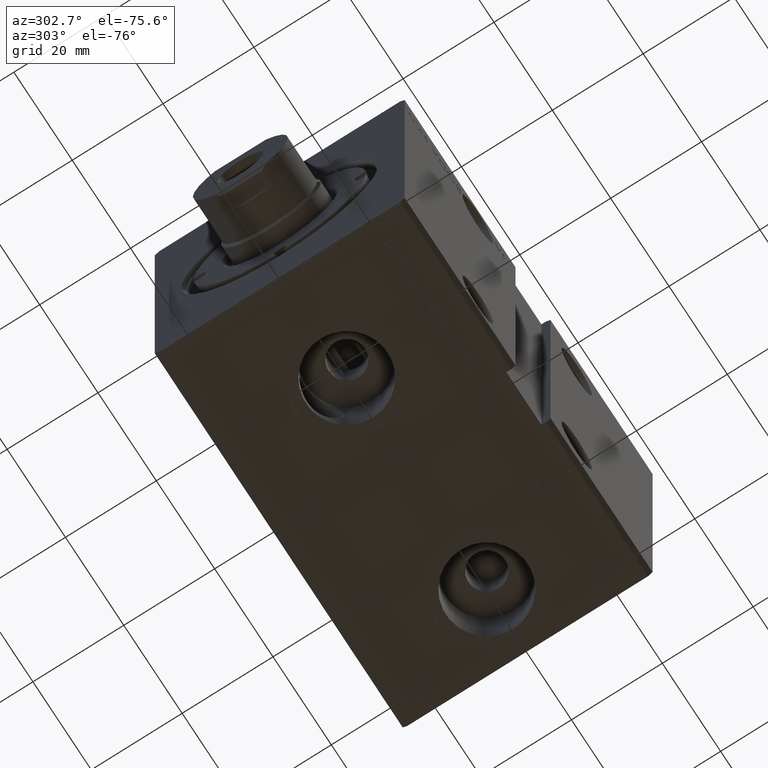
[diagram: clean part render]
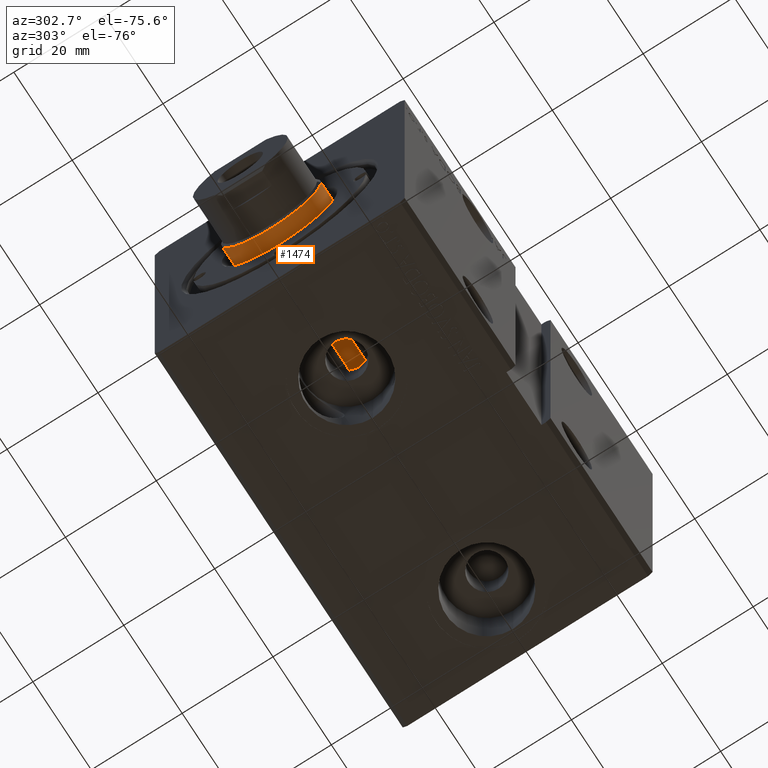
[diagram: same view with one face highlighted and labeled with its STEP entity id]
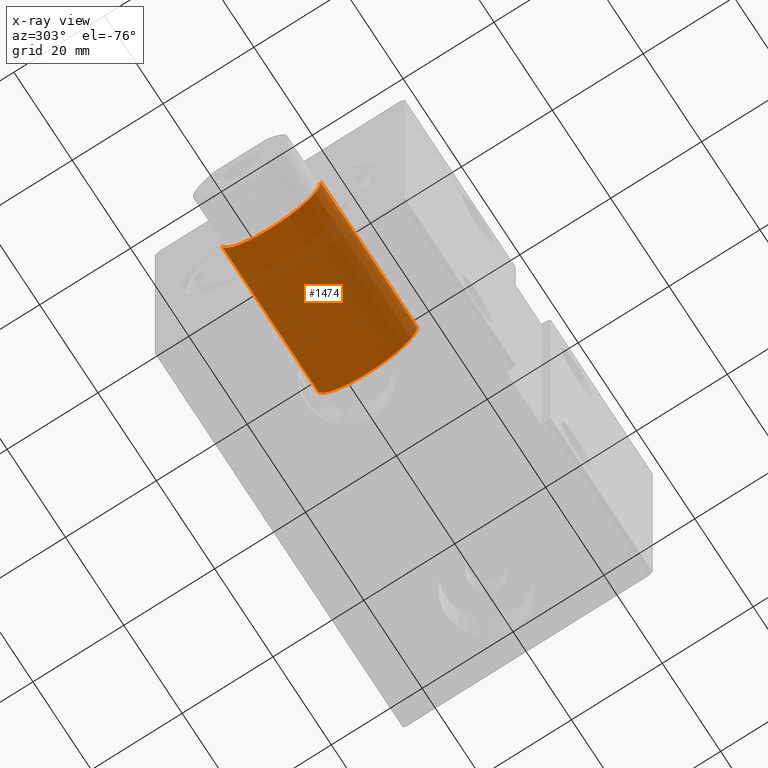
[diagram: x-ray of the same camera — body ghosted, the highlighted face saturated]
A machine part, auxiliary view. The second image highlights one B-rep face of the part: STEP entity #1474.
The next image is the same camera in x-ray: the body ghosted, the highlighted face saturated — about 68% of this face is hidden behind the body in this view.
In plain terms, the highlighted cylindrical surface (partial cylindrical patch) has radius 11 mm, axis along (-1, -0, -0).
Its self-contained STEP definition (entity closure, byte-faithful):
#1304 = CARTESIAN_POINT ( 'NONE',  ( 0.000000000000000000, -11.00000000000001776, 68.50000000000000000 ) ) ;
#1474 = ADVANCED_FACE ( 'NONE', ( #3317 ), #8825, .T. ) ;
#2551 = DIRECTION ( 'NONE',  ( -0.000000000000000000, -1.781522477244710957E-16, 1.000000000000000000 ) ) ;
#2954 = DIRECTION ( 'NONE',  ( 0.000000000000000000, -1.000000000000000000, -3.154042683594193148E-16 ) ) ;
#3317 = FACE_OUTER_BOUND ( 'NONE', #24402, .T. ) ;
#3762 = CARTESIAN_POINT ( 'NONE',  ( 1.347111479062089588E-15, 11.00000000000000000, 25.00000000000000355 ) ) ;
#4144 = CARTESIAN_POINT ( 'NONE',  ( 1.347111479062089193E-15, 10.99999999999999467, 68.50000000000000000 ) ) ;
#5489 = ORIENTED_EDGE ( 'NONE', *, *, #33420, .F. ) ;
#5756 = DIRECTION ( 'NONE',  ( 0.000000000000000000, -1.000000000000000000, 0.000000000000000000 ) ) ;
#6012 = DIRECTION ( 'NONE',  ( -0.000000000000000000, -1.781522477244710957E-16, 1.000000000000000000 ) ) ;
#8825 = CYLINDRICAL_SURFACE ( 'NONE', #27504, 11.00000000000000711 ) ;
#9507 = ORIENTED_EDGE ( 'NONE', *, *, #11822, .T. ) ;
#11746 = CARTESIAN_POINT ( 'NONE',  ( 0.000000000000000000, -1.033283036801932355E-14, 58.00000000000000000 ) ) ;
#11822 = EDGE_CURVE ( 'NONE', #29744, #15690, #32240, .T. ) ;
#13774 = DIRECTION ( 'NONE',  ( -0.000000000000000000, -1.781522477244711203E-16, 1.000000000000000000 ) ) ;
#15690 = VERTEX_POINT ( 'NONE', #17819 ) ;
#16888 = VECTOR ( 'NONE', #39105, 1000.000000000000000 ) ;
#17819 = CARTESIAN_POINT ( 'NONE',  ( 0.000000000000000000, -11.00000000000001066, 24.99999999999999645 ) ) ;
#18109 = CIRCLE ( 'NONE', #24641, 11.00000000000000711 ) ;
#18428 = CARTESIAN_POINT ( 'NONE',  ( 0.000000000000000000, -1.220342896912627084E-14, 68.50000000000000000 ) ) ;
#20451 = VERTEX_POINT ( 'NONE', #23323 ) ;
#21306 = DIRECTION ( 'NONE',  ( -0.000000000000000000, -1.781522477244710957E-16, 1.000000000000000000 ) ) ;
#21475 = ORIENTED_EDGE ( 'NONE', *, *, #26038, .F. ) ;
#23323 = CARTESIAN_POINT ( 'NONE',  ( 1.347111479062089193E-15, 10.99999999999999645, 58.00000000000000000 ) ) ;
#24402 = EDGE_LOOP ( 'NONE', ( #5489, #9507, #25918, #21475 ) ) ;
#24641 = AXIS2_PLACEMENT_3D ( 'NONE', #11746, #2551, #30772 ) ;
#25044 = CARTESIAN_POINT ( 'NONE',  ( 0.000000000000000000, -4.453806193111777392E-15, 25.00000000000000000 ) ) ;
#25918 = ORIENTED_EDGE ( 'NONE', *, *, #33891, .T. ) ;
#26038 = EDGE_CURVE ( 'NONE', #20451, #30374, #18109, .T. ) ;
#26649 = LINE ( 'NONE', #4144, #16888 ) ;
#27504 = AXIS2_PLACEMENT_3D ( 'NONE', #18428, #21306, #5756 ) ;
#29017 = AXIS2_PLACEMENT_3D ( 'NONE', #25044, #6012, #2954 ) ;
#29329 = LINE ( 'NONE', #1304, #39080 ) ;
#29744 = VERTEX_POINT ( 'NONE', #3762 ) ;
#30374 = VERTEX_POINT ( 'NONE', #40075 ) ;
#30772 = DIRECTION ( 'NONE',  ( 0.000000000000000000, -1.000000000000000000, 0.000000000000000000 ) ) ;
#32240 = CIRCLE ( 'NONE', #29017, 11.00000000000000533 ) ;
#33420 = EDGE_CURVE ( 'NONE', #29744, #20451, #26649, .T. ) ;
#33891 = EDGE_CURVE ( 'NONE', #15690, #30374, #29329, .T. ) ;
#39080 = VECTOR ( 'NONE', #13774, 1000.000000000000000 ) ;
#39105 = DIRECTION ( 'NONE',  ( -0.000000000000000000, -1.781522477244711203E-16, 1.000000000000000000 ) ) ;
#40075 = CARTESIAN_POINT ( 'NONE',  ( 0.000000000000000000, -11.00000000000001599, 58.00000000000000000 ) ) ;